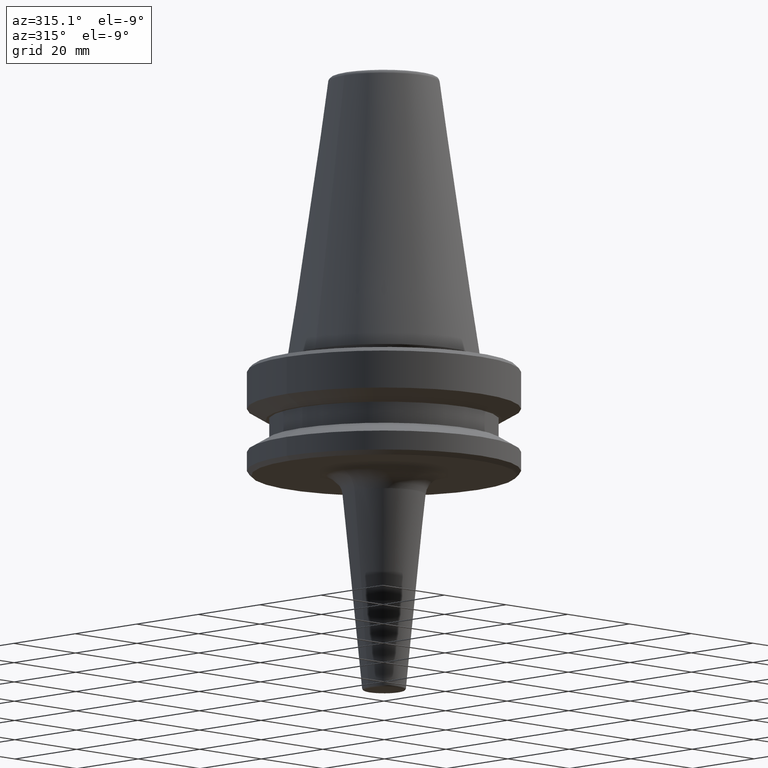
[diagram: clean part render]
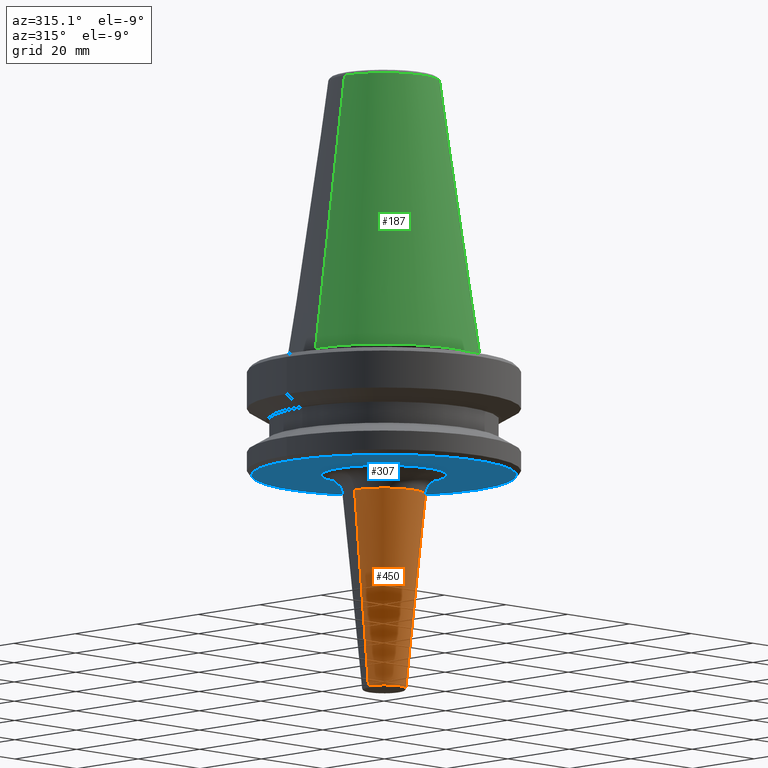
[diagram: same view with three faces highlighted in distinct colors, each labeled with its STEP entity id]
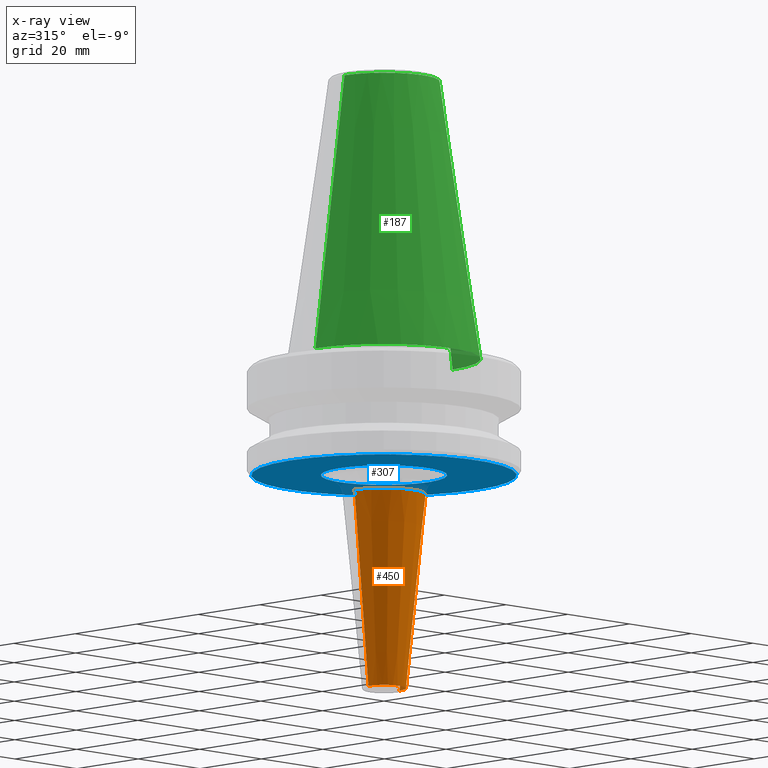
[diagram: x-ray of the same camera — body ghosted, the three highlighted faces saturated]
A machine part, auxiliary view with three faces highlighted in distinct colors.
The next image is the same camera in x-ray (body ghosted, the three faces saturated) — at least one of them is partly hidden behind the body in this view.
Their STEP definitions:

[orange] entity #450 — the highlighted conical surface has half-angle 5.711 deg.
#12 = LINE ( 'NONE', #692, #247 ) ;
#25 = DIRECTION ( 'NONE',  ( -0.0000000000000000000, -0.0000000000000000000, 1.000000000000000000 ) ) ;
#36 = VECTOR ( 'NONE', #455, 1000.000000000000100 ) ;
#45 = VERTEX_POINT ( 'NONE', #843 ) ;
#86 = EDGE_CURVE ( 'NONE', #993, #500, #272, .T. ) ;
#99 = EDGE_CURVE ( 'NONE', #45, #993, #243, .T. ) ;
#154 = DIRECTION ( 'NONE',  ( 1.000000000000000000, 0.0000000000000000000, 0.0000000000000000000 ) ) ;
#206 = EDGE_LOOP ( 'NONE', ( #474, #857, #361, #415 ) ) ;
#211 = AXIS2_PLACEMENT_3D ( 'NONE', #418, #25, #571 ) ;
#223 = CONICAL_SURFACE ( 'NONE', #354, 9.549751859510500700, 0.09966865249116210700 ) ;
#243 = LINE ( 'NONE', #281, #36 ) ;
#247 = VECTOR ( 'NONE', #832, 1000.000000000000100 ) ;
#272 = CIRCLE ( 'NONE', #338, 9.549751859510500700 ) ;
#281 = CARTESIAN_POINT ( 'NONE',  ( -9.549751859510500700, 1.169507304740101900E-015, -96.90248140490305700 ) ) ;
#317 = CARTESIAN_POINT ( 'NONE',  ( 9.549751859510500700, 0.0000000000000000000, -96.90248140490305700 ) ) ;
#338 = AXIS2_PLACEMENT_3D ( 'NONE', #552, #529, #990 ) ;
#344 = CARTESIAN_POINT ( 'NONE',  ( 0.0000000000000000000, 0.0000000000000000000, -96.90248140490305700 ) ) ;
#354 = AXIS2_PLACEMENT_3D ( 'NONE', #344, #913, #154 ) ;
#361 = ORIENTED_EDGE ( 'NONE', *, *, #462, .T. ) ;
#415 = ORIENTED_EDGE ( 'NONE', *, *, #86, .F. ) ;
#418 = CARTESIAN_POINT ( 'NONE',  ( 0.0000000000000000000, 0.0000000000000000000, -141.9497518595188700 ) ) ;
#450 = ADVANCED_FACE ( 'NONE', ( #896 ), #223, .T. ) ;
#455 = DIRECTION ( 'NONE',  ( -0.09950371902099898500, 1.218569110023240100E-017, 0.9950371902099890400 ) ) ;
#462 = EDGE_CURVE ( 'NONE', #708, #500, #12, .T. ) ;
#474 = ORIENTED_EDGE ( 'NONE', *, *, #99, .F. ) ;
#484 = CIRCLE ( 'NONE', #211, 5.045024814048916900 ) ;
#500 = VERTEX_POINT ( 'NONE', #317 ) ;
#529 = DIRECTION ( 'NONE',  ( -0.0000000000000000000, -0.0000000000000000000, 1.000000000000000000 ) ) ;
#552 = CARTESIAN_POINT ( 'NONE',  ( 0.0000000000000000000, 0.0000000000000000000, -96.90248140490305700 ) ) ;
#571 = DIRECTION ( 'NONE',  ( 1.000000000000000000, 0.0000000000000000000, 0.0000000000000000000 ) ) ;
#692 = CARTESIAN_POINT ( 'NONE',  ( 9.549751859510500700, 0.0000000000000000000, -96.90248140490305700 ) ) ;
#708 = VERTEX_POINT ( 'NONE', #1054 ) ;
#815 = EDGE_CURVE ( 'NONE', #45, #708, #484, .T. ) ;
#832 = DIRECTION ( 'NONE',  ( 0.09950371902099898500, 0.0000000000000000000, 0.9950371902099890400 ) ) ;
#843 = CARTESIAN_POINT ( 'NONE',  ( -5.045024814048924900, 6.178373490143986500E-016, -141.9497518595188700 ) ) ;
#857 = ORIENTED_EDGE ( 'NONE', *, *, #815, .T. ) ;
#896 = FACE_OUTER_BOUND ( 'NONE', #206, .T. ) ;
#913 = DIRECTION ( 'NONE',  ( -0.0000000000000000000, -0.0000000000000000000, 1.000000000000000000 ) ) ;
#930 = CARTESIAN_POINT ( 'NONE',  ( -9.549751859510500700, 1.474149582245911800E-015, -96.90248140490305700 ) ) ;
#990 = DIRECTION ( 'NONE',  ( 1.000000000000000000, 0.0000000000000000000, 0.0000000000000000000 ) ) ;
#993 = VERTEX_POINT ( 'NONE', #930 ) ;
#1054 = CARTESIAN_POINT ( 'NONE',  ( 5.045024814048924900, 0.0000000000000000000, -141.9497518595188700 ) ) ;

[blue] entity #307 — the highlighted planar face has unit normal (0, -0, 1).
#156 = EDGE_CURVE ( 'NONE', #984, #743, #351, .T. ) ;
#203 = DIRECTION ( 'NONE',  ( 1.000000000000000000, 0.0000000000000000000, 0.0000000000000000000 ) ) ;
#231 = EDGE_CURVE ( 'NONE', #902, #448, #679, .T. ) ;
#245 = ORIENTED_EDGE ( 'NONE', *, *, #424, .F. ) ;
#277 = CIRCLE ( 'NONE', #683, 14.52493781056044500 ) ;
#284 = ORIENTED_EDGE ( 'NONE', *, *, #414, .T. ) ;
#292 = DIRECTION ( 'NONE',  ( -0.0000000000000000000, -0.0000000000000000000, 1.000000000000000000 ) ) ;
#307 = ADVANCED_FACE ( 'NONE', ( #813, #623 ), #647, .F. ) ;
#320 = AXIS2_PLACEMENT_3D ( 'NONE', #1013, #413, #353 ) ;
#342 = CARTESIAN_POINT ( 'NONE',  ( 0.0000000000000000000, 0.0000000000000000000, -92.40000000000803500 ) ) ;
#345 = AXIS2_PLACEMENT_3D ( 'NONE', #342, #486, #828 ) ;
#351 = CIRCLE ( 'NONE', #648, 14.52493781056044500 ) ;
#353 = DIRECTION ( 'NONE',  ( 1.000000000000000000, 0.0000000000000000000, 0.0000000000000000000 ) ) ;
#357 = DIRECTION ( 'NONE',  ( -0.0000000000000000000, -0.0000000000000000000, 1.000000000000000000 ) ) ;
#379 = ORIENTED_EDGE ( 'NONE', *, *, #156, .T. ) ;
#413 = DIRECTION ( 'NONE',  ( -0.0000000000000000000, -0.0000000000000000000, 1.000000000000000000 ) ) ;
#414 = EDGE_CURVE ( 'NONE', #743, #984, #277, .T. ) ;
#424 = EDGE_CURVE ( 'NONE', #448, #902, #678, .T. ) ;
#448 = VERTEX_POINT ( 'NONE', #566 ) ;
#486 = DIRECTION ( 'NONE',  ( -0.0000000000000000000, -0.0000000000000000000, 1.000000000000000000 ) ) ;
#519 = EDGE_LOOP ( 'NONE', ( #795, #245 ) ) ;
#539 = DIRECTION ( 'NONE',  ( 1.000000000000000000, 0.0000000000000000000, 0.0000000000000000000 ) ) ;
#543 = CARTESIAN_POINT ( 'NONE',  ( -14.52493781056044500, 1.778791859751721300E-015, -92.40000000000806300 ) ) ;
#566 = CARTESIAN_POINT ( 'NONE',  ( -30.49999999999241900, 3.796405077356336000E-015, -92.40000000000803500 ) ) ;
#623 = FACE_BOUND ( 'NONE', #765, .T. ) ;
#647 = PLANE ( 'NONE',  #823 ) ;
#648 = AXIS2_PLACEMENT_3D ( 'NONE', #1037, #292, #203 ) ;
#670 = CARTESIAN_POINT ( 'NONE',  ( 30.49999999999241900, 0.0000000000000000000, -92.40000000000803500 ) ) ;
#678 = CIRCLE ( 'NONE', #320, 30.49999999999241900 ) ;
#679 = CIRCLE ( 'NONE', #345, 30.49999999999241900 ) ;
#683 = AXIS2_PLACEMENT_3D ( 'NONE', #909, #357, #775 ) ;
#743 = VERTEX_POINT ( 'NONE', #753 ) ;
#753 = CARTESIAN_POINT ( 'NONE',  ( 14.52493781056044500, 0.0000000000000000000, -92.40000000000806300 ) ) ;
#765 = EDGE_LOOP ( 'NONE', ( #284, #379 ) ) ;
#775 = DIRECTION ( 'NONE',  ( 1.000000000000000000, 0.0000000000000000000, 0.0000000000000000000 ) ) ;
#795 = ORIENTED_EDGE ( 'NONE', *, *, #231, .F. ) ;
#813 = FACE_OUTER_BOUND ( 'NONE', #519, .T. ) ;
#823 = AXIS2_PLACEMENT_3D ( 'NONE', #994, #971, #539 ) ;
#828 = DIRECTION ( 'NONE',  ( 1.000000000000000000, 0.0000000000000000000, 0.0000000000000000000 ) ) ;
#902 = VERTEX_POINT ( 'NONE', #670 ) ;
#909 = CARTESIAN_POINT ( 'NONE',  ( 0.0000000000000000000, 0.0000000000000000000, -92.40000000000806300 ) ) ;
#971 = DIRECTION ( 'NONE',  ( 0.0000000000000000000, -0.0000000000000000000, 1.000000000000000000 ) ) ;
#984 = VERTEX_POINT ( 'NONE', #543 ) ;
#994 = CARTESIAN_POINT ( 'NONE',  ( 0.0000000000000000000, 1.605386668592071400E-013, -92.40000000000804900 ) ) ;
#1013 = CARTESIAN_POINT ( 'NONE',  ( 0.0000000000000000000, 0.0000000000000000000, -92.40000000000803500 ) ) ;
#1037 = CARTESIAN_POINT ( 'NONE',  ( 0.0000000000000000000, 0.0000000000000000000, -92.40000000000806300 ) ) ;

[green] entity #187 — the highlighted conical surface has half-angle 8.297 deg.
#41 = VECTOR ( 'NONE', #225, 1000.000000000000000 ) ;
#44 = EDGE_CURVE ( 'NONE', #386, #204, #514, .T. ) ;
#58 = DIRECTION ( 'NONE',  ( 0.1443081888881795900, 1.767265616126607700E-017, -0.9895327920891826600 ) ) ;
#61 = LINE ( 'NONE', #636, #41 ) ;
#68 = ORIENTED_EDGE ( 'NONE', *, *, #761, .F. ) ;
#79 = VECTOR ( 'NONE', #58, 1000.000000000000000 ) ;
#122 = DIRECTION ( 'NONE',  ( -1.000000000000000000, 0.0000000000000000000, 0.0000000000000000000 ) ) ;
#164 = CARTESIAN_POINT ( 'NONE',  ( 12.81220206925736900, 2.145409868259749100E-015, -0.8556918111122247000 ) ) ;
#187 = ADVANCED_FACE ( 'NONE', ( #978 ), #963, .T. ) ;
#204 = VERTEX_POINT ( 'NONE', #887 ) ;
#225 = DIRECTION ( 'NONE',  ( -0.1443081888881795900, 0.0000000000000000000, -0.9895327920891826600 ) ) ;
#238 = DIRECTION ( 'NONE',  ( -0.0000000000000000000, -0.0000000000000000000, 1.000000000000000000 ) ) ;
#241 = ORIENTED_EDGE ( 'NONE', *, *, #257, .T. ) ;
#257 = EDGE_CURVE ( 'NONE', #731, #848, #61, .T. ) ;
#308 = CARTESIAN_POINT ( 'NONE',  ( 12.81220206925736900, 1.569042225414513200E-015, -0.8556918111122247000 ) ) ;
#324 = CIRCLE ( 'NONE', #922, 12.81220206925736900 ) ;
#326 = EDGE_LOOP ( 'NONE', ( #855, #68, #241, #332 ) ) ;
#328 = AXIS2_PLACEMENT_3D ( 'NONE', #599, #238, #663 ) ;
#332 = ORIENTED_EDGE ( 'NONE', *, *, #628, .T. ) ;
#386 = VERTEX_POINT ( 'NONE', #164 ) ;
#507 = AXIS2_PLACEMENT_3D ( 'NONE', #680, #851, #122 ) ;
#514 = LINE ( 'NONE', #308, #79 ) ;
#570 = CIRCLE ( 'NONE', #328, 22.22499999999993700 ) ;
#599 = CARTESIAN_POINT ( 'NONE',  ( 0.0000000000000000000, 0.0000000000000000000, -65.40000000000057400 ) ) ;
#628 = EDGE_CURVE ( 'NONE', #848, #204, #570, .T. ) ;
#636 = CARTESIAN_POINT ( 'NONE',  ( -12.81220206925736900, 0.0000000000000000000, -0.8556918111122247000 ) ) ;
#663 = DIRECTION ( 'NONE',  ( 1.000000000000000000, 0.0000000000000000000, 0.0000000000000000000 ) ) ;
#680 = CARTESIAN_POINT ( 'NONE',  ( 0.0000000000000000000, 0.0000000000000000000, -0.8556918111122247000 ) ) ;
#731 = VERTEX_POINT ( 'NONE', #741 ) ;
#741 = CARTESIAN_POINT ( 'NONE',  ( -12.81220206925736900, 0.0000000000000000000, -0.8556918111122247000 ) ) ;
#746 = CARTESIAN_POINT ( 'NONE',  ( -22.22499999999993700, 2.721777511104985000E-015, -65.40000000000057400 ) ) ;
#761 = EDGE_CURVE ( 'NONE', #731, #386, #324, .T. ) ;
#802 = CARTESIAN_POINT ( 'NONE',  ( 0.0000000000000000000, 0.0000000000000000000, -0.8556918111122247000 ) ) ;
#848 = VERTEX_POINT ( 'NONE', #746 ) ;
#851 = DIRECTION ( 'NONE',  ( 0.0000000000000000000, 0.0000000000000000000, -1.000000000000000000 ) ) ;
#855 = ORIENTED_EDGE ( 'NONE', *, *, #44, .F. ) ;
#887 = CARTESIAN_POINT ( 'NONE',  ( 22.22499999999993700, 0.0000000000000000000, -65.40000000000057400 ) ) ;
#888 = DIRECTION ( 'NONE',  ( -0.0000000000000000000, -0.0000000000000000000, 1.000000000000000000 ) ) ;
#922 = AXIS2_PLACEMENT_3D ( 'NONE', #802, #888, #981 ) ;
#963 = CONICAL_SURFACE ( 'NONE', #507, 12.81220206925736900, 0.1448138077623198300 ) ;
#978 = FACE_OUTER_BOUND ( 'NONE', #326, .T. ) ;
#981 = DIRECTION ( 'NONE',  ( 1.000000000000000000, 0.0000000000000000000, 0.0000000000000000000 ) ) ;